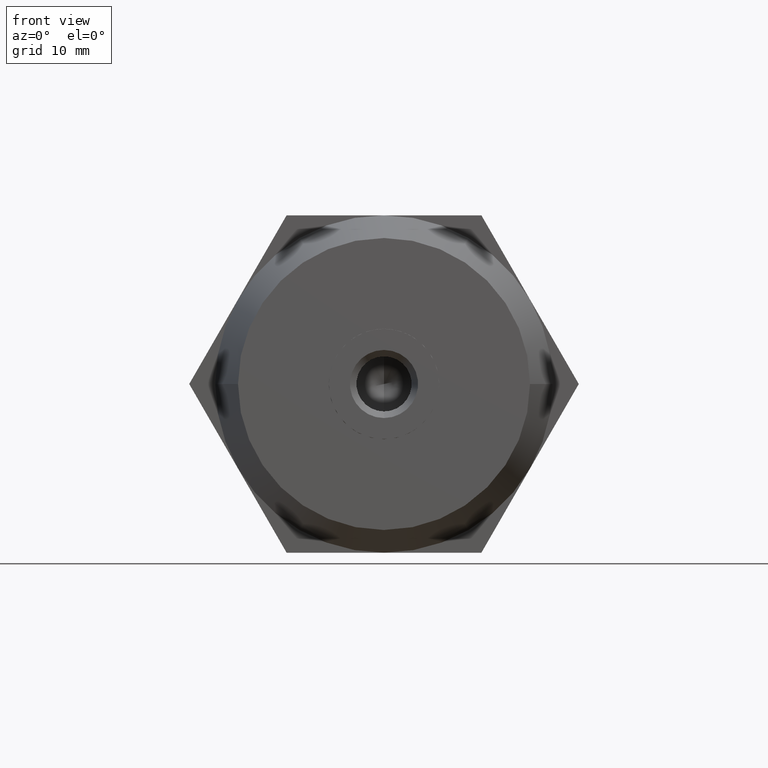
[diagram: clean part render]
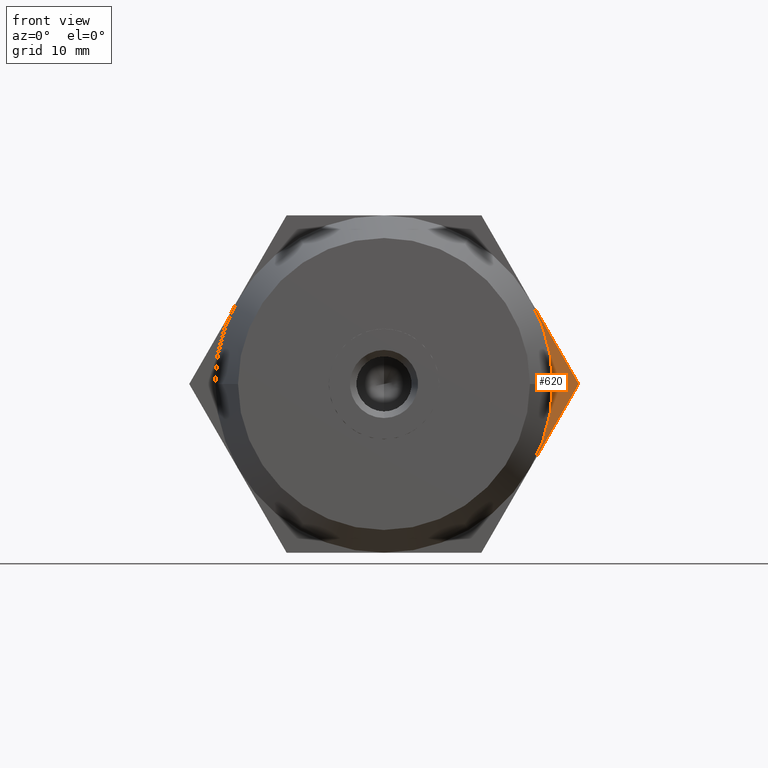
[diagram: same view with one face highlighted and labeled with its STEP entity id]
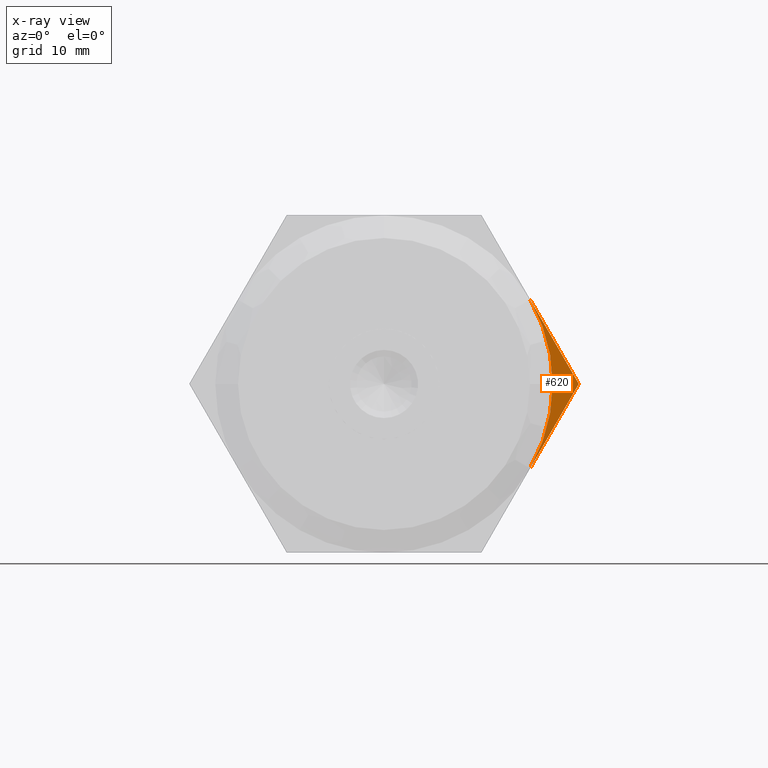
[diagram: x-ray of the same camera — body ghosted, the highlighted face saturated]
A machine part, front view. The second image highlights one B-rep face of the part: STEP entity #620.
The next image is the same camera in x-ray: the body ghosted, the highlighted face saturated — about 0% of this face is hidden behind the body in this view.
In plain terms, the highlighted planar face has unit normal (0, 1, 0).
Its self-contained STEP definition (entity closure, byte-faithful):
#77 = DIRECTION ( 'NONE',  ( 0.4999999999999998900, 0.0000000000000000000, -0.8660254037844387100 ) ) ;
#179 = EDGE_CURVE ( 'NONE', #4708, #3184, #4245, .T. ) ;
#256 = DIRECTION ( 'NONE',  ( 0.0000000000000000000, 0.0000000000000000000, 1.000000000000000000 ) ) ;
#520 = EDGE_CURVE ( 'NONE', #4708, #3884, #2224, .T. ) ;
#620 = ADVANCED_FACE ( 'NONE', ( #1654 ), #4392, .F. ) ;
#915 = EDGE_CURVE ( 'NONE', #3184, #3251, #5129, .T. ) ;
#961 = AXIS2_PLACEMENT_3D ( 'NONE', #2043, #1187, #2781 ) ;
#1142 = VECTOR ( 'NONE', #77, 1000.000000000000000 ) ;
#1187 = DIRECTION ( 'NONE',  ( 0.0000000000000000000, 1.000000000000000000, 0.0000000000000000000 ) ) ;
#1391 = ORIENTED_EDGE ( 'NONE', *, *, #179, .T. ) ;
#1487 = VECTOR ( 'NONE', #5028, 1000.000000000000000 ) ;
#1553 = CARTESIAN_POINT ( 'NONE',  ( 22.51666049839544900, -5.000000000000000000, 13.00000000000000000 ) ) ;
#1654 = FACE_OUTER_BOUND ( 'NONE', #3062, .T. ) ;
#2043 = CARTESIAN_POINT ( 'NONE',  ( 0.0000000000000000000, -5.000000000000000000, 0.0000000000000000000 ) ) ;
#2045 = CARTESIAN_POINT ( 'NONE',  ( 30.02221399786055000, -5.000000000000000000, -1.386447110356290000E-014 ) ) ;
#2116 = LINE ( 'NONE', #4242, #1487 ) ;
#2180 = ORIENTED_EDGE ( 'NONE', *, *, #2841, .F. ) ;
#2224 = LINE ( 'NONE', #4028, #1142 ) ;
#2397 = ORIENTED_EDGE ( 'NONE', *, *, #915, .T. ) ;
#2633 = ORIENTED_EDGE ( 'NONE', *, *, #520, .F. ) ;
#2665 = DIRECTION ( 'NONE',  ( 0.0000000000000000000, 1.000000000000000000, 0.0000000000000000000 ) ) ;
#2781 = DIRECTION ( 'NONE',  ( 0.0000000000000000000, 0.0000000000000000000, 1.000000000000000000 ) ) ;
#2828 = AXIS2_PLACEMENT_3D ( 'NONE', #3422, #2665, #256 ) ;
#2841 = EDGE_CURVE ( 'NONE', #3884, #3251, #2116, .T. ) ;
#3062 = EDGE_LOOP ( 'NONE', ( #2633, #1391, #2397, #2180 ) ) ;
#3184 = VERTEX_POINT ( 'NONE', #4943 ) ;
#3251 = VERTEX_POINT ( 'NONE', #4888 ) ;
#3422 = CARTESIAN_POINT ( 'NONE',  ( 5.510910596163089600E-015, -5.000000000000000000, 3.184081677783139900E-016 ) ) ;
#3884 = VERTEX_POINT ( 'NONE', #2045 ) ;
#4004 = AXIS2_PLACEMENT_3D ( 'NONE', #5062, #4601, #4235 ) ;
#4028 = CARTESIAN_POINT ( 'NONE',  ( 15.01110699893025000, -5.000000000000000000, 26.00000000000000000 ) ) ;
#4235 = DIRECTION ( 'NONE',  ( 0.0000000000000000000, 0.0000000000000000000, 1.000000000000000000 ) ) ;
#4242 = CARTESIAN_POINT ( 'NONE',  ( 30.02221399786055000, -5.000000000000000000, -1.386447110356290000E-014 ) ) ;
#4245 = CIRCLE ( 'NONE', #2828, 26.00000000000000000 ) ;
#4392 = PLANE ( 'NONE',  #961 ) ;
#4601 = DIRECTION ( 'NONE',  ( 0.0000000000000000000, 1.000000000000000000, 0.0000000000000000000 ) ) ;
#4708 = VERTEX_POINT ( 'NONE', #1553 ) ;
#4888 = CARTESIAN_POINT ( 'NONE',  ( 22.51666049839540000, -5.000000000000000000, -13.00000000000000000 ) ) ;
#4943 = CARTESIAN_POINT ( 'NONE',  ( 26.00000000000000700, -5.000000000000000000, 3.184081677783118200E-015 ) ) ;
#5028 = DIRECTION ( 'NONE',  ( -0.4999999999999998900, 0.0000000000000000000, -0.8660254037844387100 ) ) ;
#5062 = CARTESIAN_POINT ( 'NONE',  ( 5.510910596163089600E-015, -5.000000000000000000, 3.184081677783139900E-016 ) ) ;
#5129 = CIRCLE ( 'NONE', #4004, 26.00000000000000000 ) ;